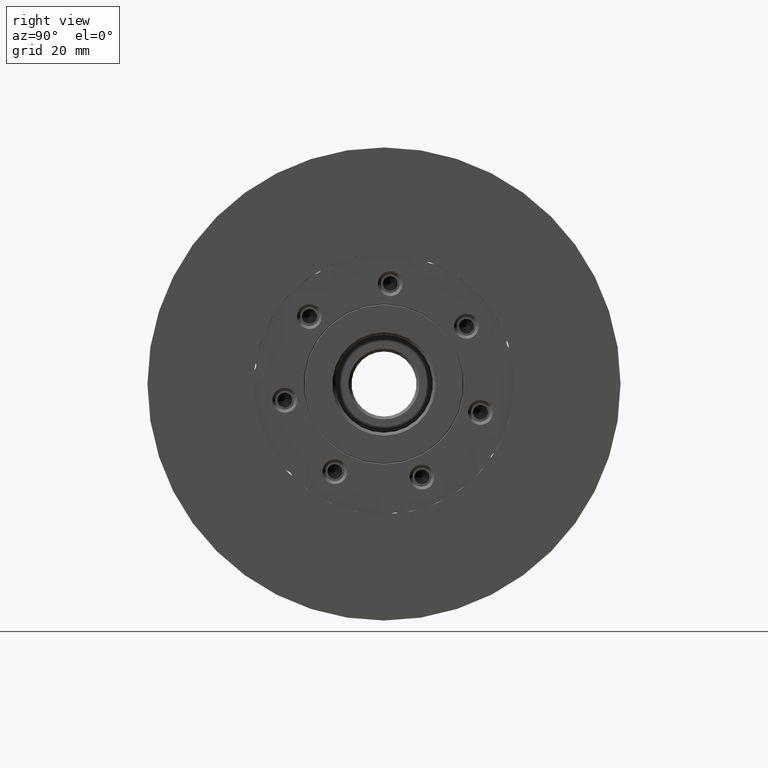
[diagram: clean part render]
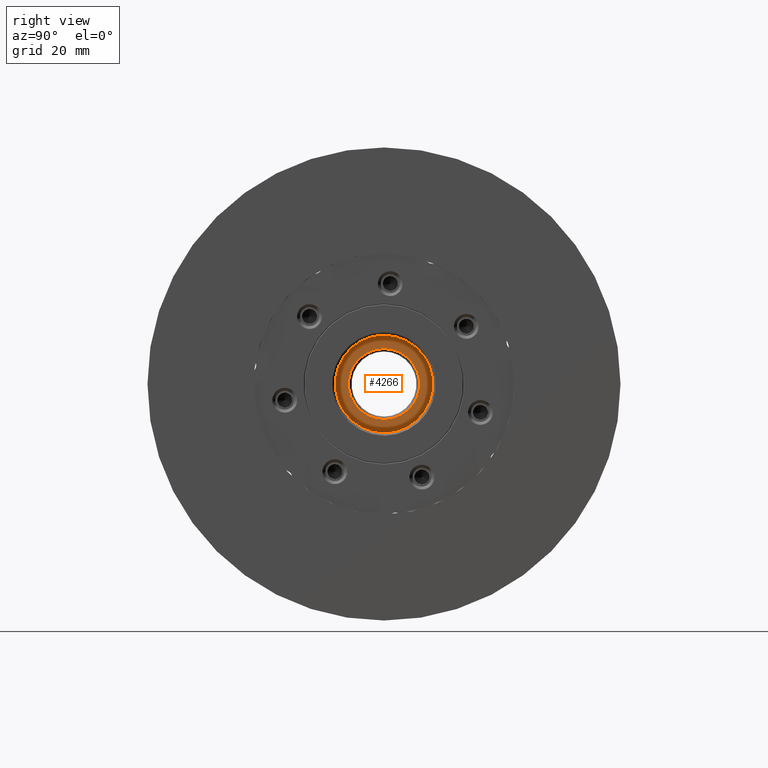
[diagram: same view with one face highlighted and labeled with its STEP entity id]
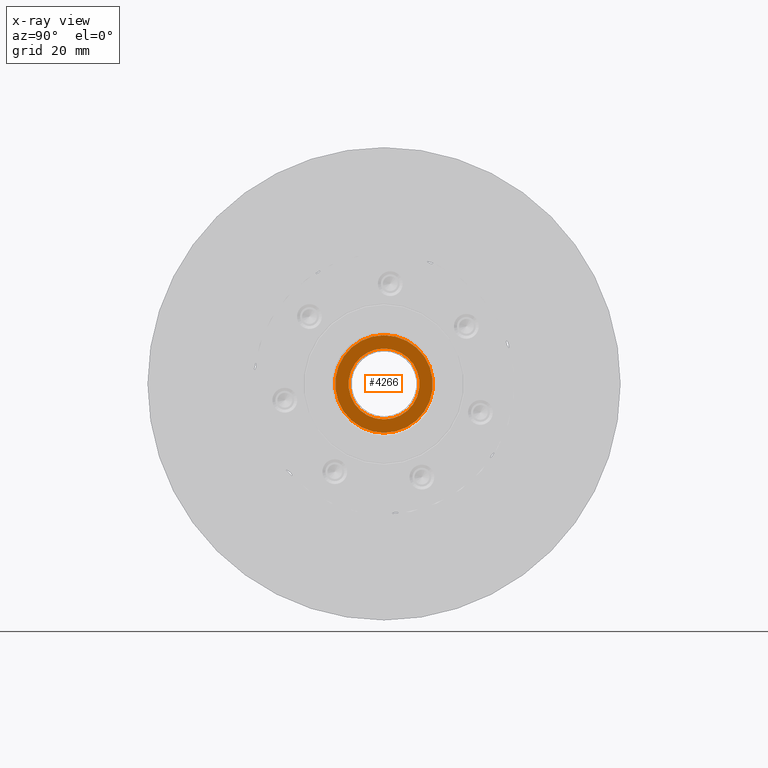
[diagram: x-ray of the same camera — body ghosted, the highlighted face saturated]
A machine part, right view. The second image highlights one B-rep face of the part: STEP entity #4266.
The next image is the same camera in x-ray: the body ghosted, the highlighted face saturated — about 0% of this face is hidden behind the body in this view.
In plain terms, the highlighted planar face has unit normal (-1, 0, 0).
Its self-contained STEP definition (entity closure, byte-faithful):
#40 = AXIS2_PLACEMENT_3D ( 'NONE', #2465, #3402, #2076 ) ;
#164 = CARTESIAN_POINT ( 'NONE',  ( -12.00000000000000178, 0.0000000000000000000, 0.0000000000000000000 ) ) ;
#184 = DIRECTION ( 'NONE',  ( 0.0000000000000000000, 0.0000000000000000000, -1.000000000000000000 ) ) ;
#350 = AXIS2_PLACEMENT_3D ( 'NONE', #4136, #3259, #742 ) ;
#654 = FACE_BOUND ( 'NONE', #2623, .T. ) ;
#742 = DIRECTION ( 'NONE',  ( 0.0000000000000000000, 0.0000000000000000000, 1.000000000000000000 ) ) ;
#1011 = ORIENTED_EDGE ( 'NONE', *, *, #4420, .F. ) ;
#1149 = PLANE ( 'NONE',  #350 ) ;
#1367 = CARTESIAN_POINT ( 'NONE',  ( -12.00000000000000000, 0.0000000000000000000, 0.0000000000000000000 ) ) ;
#1501 = AXIS2_PLACEMENT_3D ( 'NONE', #1367, #2544, #2150 ) ;
#1548 = AXIS2_PLACEMENT_3D ( 'NONE', #164, #3101, #184 ) ;
#1552 = EDGE_LOOP ( 'NONE', ( #3059, #2705 ) ) ;
#1601 = AXIS2_PLACEMENT_3D ( 'NONE', #4668, #5025, #4164 ) ;
#1647 = CARTESIAN_POINT ( 'NONE',  ( -12.00000000000000178, 7.347880794884117764E-16, 5.999999999999998224 ) ) ;
#2076 = DIRECTION ( 'NONE',  ( 0.0000000000000000000, 0.0000000000000000000, -1.000000000000000000 ) ) ;
#2150 = DIRECTION ( 'NONE',  ( 0.0000000000000000000, 0.0000000000000000000, -1.000000000000000000 ) ) ;
#2446 = EDGE_CURVE ( 'NONE', #3434, #4235, #3997, .T. ) ;
#2465 = CARTESIAN_POINT ( 'NONE',  ( -12.00000000000000000, 0.0000000000000000000, 0.0000000000000000000 ) ) ;
#2499 = VERTEX_POINT ( 'NONE', #3276 ) ;
#2544 = DIRECTION ( 'NONE',  ( 1.000000000000000000, -0.0000000000000000000, -0.0000000000000000000 ) ) ;
#2623 = EDGE_LOOP ( 'NONE', ( #1011, #3770 ) ) ;
#2705 = ORIENTED_EDGE ( 'NONE', *, *, #5248, .T. ) ;
#3059 = ORIENTED_EDGE ( 'NONE', *, *, #4521, .T. ) ;
#3081 = CIRCLE ( 'NONE', #1501, 8.249999999999998224 ) ;
#3101 = DIRECTION ( 'NONE',  ( 1.000000000000000000, -0.0000000000000000000, -0.0000000000000000000 ) ) ;
#3259 = DIRECTION ( 'NONE',  ( -1.000000000000000000, 0.0000000000000000000, 0.0000000000000000000 ) ) ;
#3276 = CARTESIAN_POINT ( 'NONE',  ( -12.00000000000000000, 0.0000000000000000000, -8.249999999999998224 ) ) ;
#3402 = DIRECTION ( 'NONE',  ( 1.000000000000000000, -0.0000000000000000000, -0.0000000000000000000 ) ) ;
#3434 = VERTEX_POINT ( 'NONE', #1647 ) ;
#3557 = CARTESIAN_POINT ( 'NONE',  ( -12.00000000000000000, 1.010333609296566353E-15, 8.249999999999998224 ) ) ;
#3698 = CARTESIAN_POINT ( 'NONE',  ( -12.00000000000000178, 0.0000000000000000000, -5.999999999999998224 ) ) ;
#3770 = ORIENTED_EDGE ( 'NONE', *, *, #2446, .F. ) ;
#3804 = CIRCLE ( 'NONE', #40, 8.249999999999998224 ) ;
#3997 = CIRCLE ( 'NONE', #1548, 5.999999999999998224 ) ;
#4058 = FACE_OUTER_BOUND ( 'NONE', #1552, .T. ) ;
#4136 = CARTESIAN_POINT ( 'NONE',  ( -12.00000000000000000, 8.249999999999998224, 0.0000000000000000000 ) ) ;
#4164 = DIRECTION ( 'NONE',  ( 0.0000000000000000000, 0.0000000000000000000, -1.000000000000000000 ) ) ;
#4235 = VERTEX_POINT ( 'NONE', #3698 ) ;
#4266 = ADVANCED_FACE ( 'NONE', ( #654, #4058 ), #1149, .F. ) ;
#4420 = EDGE_CURVE ( 'NONE', #4235, #3434, #5452, .T. ) ;
#4521 = EDGE_CURVE ( 'NONE', #2499, #5085, #3081, .T. ) ;
#4668 = CARTESIAN_POINT ( 'NONE',  ( -12.00000000000000178, 0.0000000000000000000, 0.0000000000000000000 ) ) ;
#5025 = DIRECTION ( 'NONE',  ( 1.000000000000000000, -0.0000000000000000000, -0.0000000000000000000 ) ) ;
#5085 = VERTEX_POINT ( 'NONE', #3557 ) ;
#5248 = EDGE_CURVE ( 'NONE', #5085, #2499, #3804, .T. ) ;
#5452 = CIRCLE ( 'NONE', #1601, 5.999999999999998224 ) ;